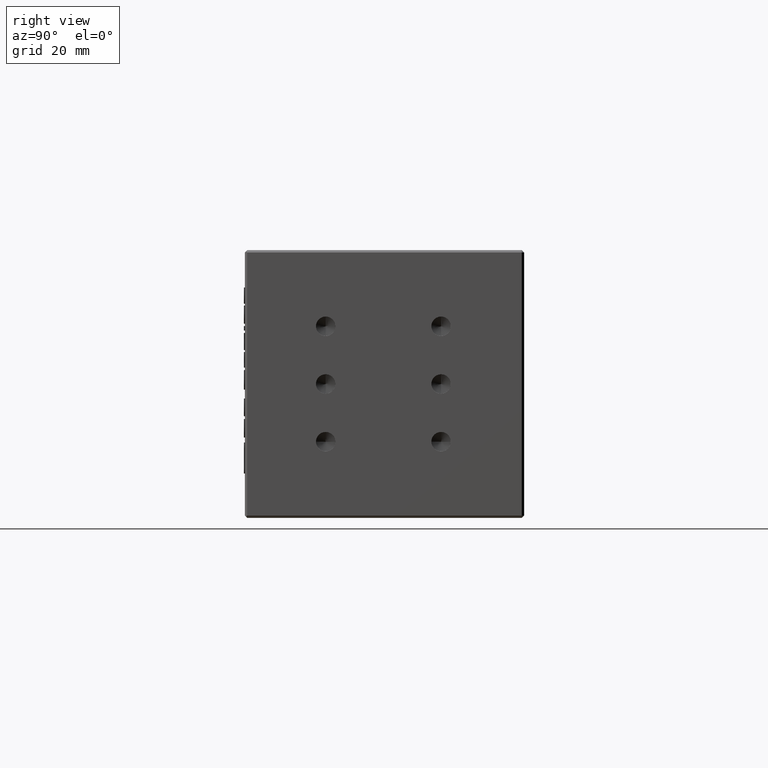
[diagram: clean part render]
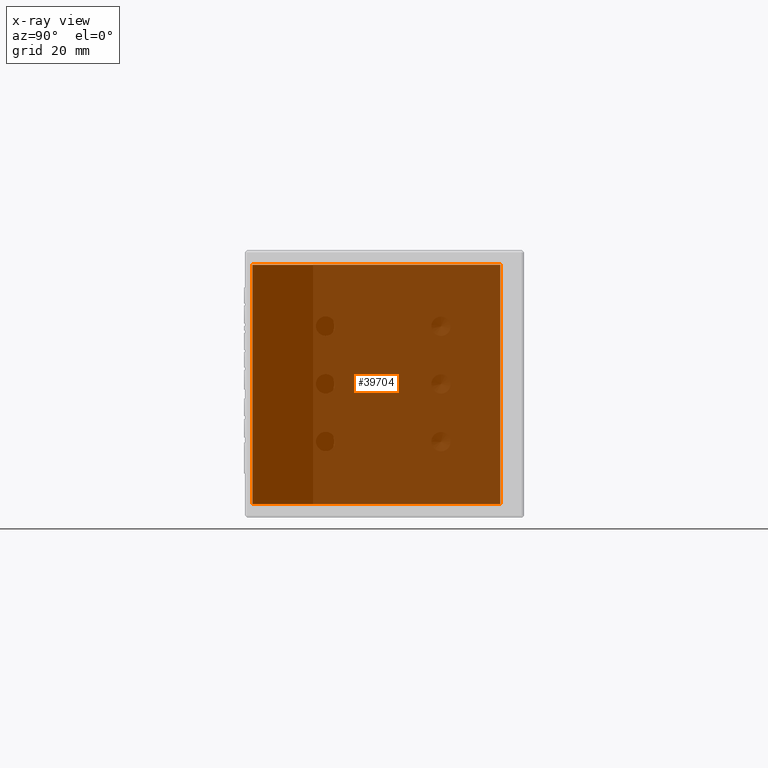
[diagram: x-ray — body ghosted, one internal face saturated and labeled with its STEP entity id]
A machine part, right view, then the same camera in x-ray: the body is ghosted and one INTERNAL B-rep face — a face not visible from any outside direction — is saturated and labeled: STEP entity #39704.
In plain terms, the highlighted planar face has unit normal (0.7071, 0.7071, -0).
Its self-contained STEP definition (entity closure, byte-faithful):
#50 = DIRECTION ( 'NONE',  ( 0.7071067811865451300, -0.7071067811865500200, -7.850462293418873400E-017 ) ) ;
#2064 = CARTESIAN_POINT ( 'NONE',  ( 27.42575077608849900, -6.126991158258234400, 54.80000000000956100 ) ) ;
#3392 = LINE ( 'NONE', #63765, #31542 ) ;
#4769 = EDGE_CURVE ( 'NONE', #40757, #11218, #67015, .T. ) ;
#6794 = LINE ( 'NONE', #57678, #45752 ) ;
#9121 = EDGE_LOOP ( 'NONE', ( #45971, #47178, #13902, #22502 ) ) ;
#11218 = VERTEX_POINT ( 'NONE', #38088 ) ;
#13902 = ORIENTED_EDGE ( 'NONE', *, *, #67382, .T. ) ;
#17271 = CARTESIAN_POINT ( 'NONE',  ( 0.5556930909997855900, 20.74306652683066300, 3.000000000009550600 ) ) ;
#22502 = ORIENTED_EDGE ( 'NONE', *, *, #42383, .T. ) ;
#24269 = DIRECTION ( 'NONE',  ( 0.7071067811865500200, 0.7071067811865451300, -6.162975822039154700E-033 ) ) ;
#25921 = DIRECTION ( 'NONE',  ( 5.551115123125762400E-017, -5.551115123125800000E-017, 1.000000000000000000 ) ) ;
#30483 = VERTEX_POINT ( 'NONE', #2064 ) ;
#31542 = VECTOR ( 'NONE', #50, 1000.000000000000100 ) ;
#33992 = CARTESIAN_POINT ( 'NONE',  ( 27.42575077608849900, -6.126991158258234400, 28.90000000000954800 ) ) ;
#34719 = PLANE ( 'NONE',  #48647 ) ;
#37136 = FACE_OUTER_BOUND ( 'NONE', #9121, .T. ) ;
#38088 = CARTESIAN_POINT ( 'NONE',  ( -26.31436459408893200, 47.61312421191956900, 3.000000000009554100 ) ) ;
#38839 = VECTOR ( 'NONE', #60381, 1000.000000000000000 ) ;
#39704 = ADVANCED_FACE ( 'NONE', ( #37136 ), #34719, .T. ) ;
#40757 = VERTEX_POINT ( 'NONE', #66764 ) ;
#42383 = EDGE_CURVE ( 'NONE', #47455, #30483, #3392, .T. ) ;
#45752 = VECTOR ( 'NONE', #25921, 1000.000000000000000 ) ;
#45971 = ORIENTED_EDGE ( 'NONE', *, *, #65668, .T. ) ;
#47152 = VECTOR ( 'NONE', #54337, 1000.000000000000100 ) ;
#47178 = ORIENTED_EDGE ( 'NONE', *, *, #4769, .T. ) ;
#47455 = VERTEX_POINT ( 'NONE', #59486 ) ;
#48647 = AXIS2_PLACEMENT_3D ( 'NONE', #56005, #24269, #61370 ) ;
#54337 = DIRECTION ( 'NONE',  ( -0.7071067811865451300, 0.7071067811865500200, 7.850462293418873400E-017 ) ) ;
#56005 = CARTESIAN_POINT ( 'NONE',  ( 0.5556930909997870300, 20.74306652683066000, 28.90000000000954800 ) ) ;
#57678 = CARTESIAN_POINT ( 'NONE',  ( -26.31436459408893200, 47.61312421191956200, 28.90000000000955200 ) ) ;
#59486 = CARTESIAN_POINT ( 'NONE',  ( -26.31436459408893200, 47.61312421191956200, 54.80000000000956800 ) ) ;
#60381 = DIRECTION ( 'NONE',  ( -5.551115123125762400E-017, 5.551115123125800000E-017, -1.000000000000000000 ) ) ;
#61370 = DIRECTION ( 'NONE',  ( 0.7071067811865451300, -0.7071067811865500200, -7.850462293418873400E-017 ) ) ;
#63765 = CARTESIAN_POINT ( 'NONE',  ( 0.5556930909997884700, 20.74306652683066000, 54.80000000000956100 ) ) ;
#65668 = EDGE_CURVE ( 'NONE', #30483, #40757, #67020, .T. ) ;
#66764 = CARTESIAN_POINT ( 'NONE',  ( 27.42575077608849900, -6.126991158258230800, 3.000000000009547000 ) ) ;
#67015 = LINE ( 'NONE', #17271, #47152 ) ;
#67020 = LINE ( 'NONE', #33992, #38839 ) ;
#67382 = EDGE_CURVE ( 'NONE', #11218, #47455, #6794, .T. ) ;